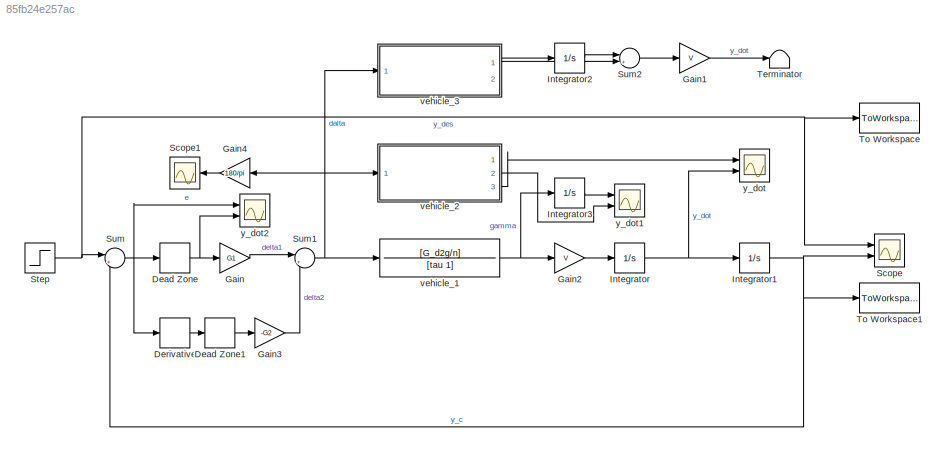
MODEL slx_85fb24e257ac
KIND model
CONFIG AbsTol = auto
CONFIG EnableMultiTasking = off
CONFIG FixedStep = auto
CONFIG MaxStep = auto
CONFIG MinStep = auto
CONFIG RelTol = 1e-3
CONFIG SampleTimeConstraint = Unconstrained
CONFIG Solver = VariableStepAuto
CONFIG SolverName = VariableStepAuto
CONFIG StartTime = 0.0
CONFIG StopTime = time
BLOCK [DeadZone] Dead Zone
  LowerValue = -sensitivity_e
  UpperValue = sensitivity_e
BLOCK [DeadZone] Dead Zone1
  LowerValue = -sensitivity_y_dot
  UpperValue = sensitivity_y_dot
BLOCK [Derivative] Derivative
BLOCK [Gain] Gain
  Gain = G1
  OutDataTypeStr = Inherit: Inherit via internal rule
  ParamDataTypeStr = Inherit: Inherit via internal rule
  SaturateOnIntegerOverflow = off
BLOCK [Gain] Gain1
  Gain = V
  OutDataTypeStr = Inherit: Inherit via internal rule
  ParamDataTypeStr = Inherit: Inherit via internal rule
  SaturateOnIntegerOverflow = off
BLOCK [Gain] Gain2
  Gain = V
  OutDataTypeStr = Inherit: Inherit via internal rule
  ParamDataTypeStr = Inherit: Inherit via internal rule
  SaturateOnIntegerOverflow = off
BLOCK [Gain] Gain3
  Gain = -G2
  OutDataTypeStr = Inherit: Inherit via internal rule
  ParamDataTypeStr = Inherit: Inherit via internal rule
  SaturateOnIntegerOverflow = off
BLOCK [Gain] Gain4
  Gain = 180/pi
  OutDataTypeStr = Inherit: Inherit via internal rule
  ParamDataTypeStr = Inherit: Inherit via internal rule
  SaturateOnIntegerOverflow = off
BLOCK [Integrator] Integrator
  Ports = [1, 1]
BLOCK [Integrator] Integrator1
  Ports = [1, 1]
BLOCK [Integrator] Integrator2
  Ports = [1, 1]
BLOCK [Integrator] Integrator3
  Ports = [1, 1]
BLOCK [Scope] Scope
  Floating = off
  NumInputPorts = 2
  Ports = [2]
  ScopeSpecificationString = Simulink.scopes.TimeScopeBlockCfg('CurrentConfiguration', extmgr.ConfigurationSet(extmgr.Configuration('Core','General UI',true),extmgr.Configuration('Core','Source UI',true),extmgr.Configuration('Sources','WiredSimulink',true),extmgr.Configuration('Visuals','Time Domain',true,'SerializedDisplays',{struct('MinYLimReal','-0.12987','MaxYLimReal','1.16886','YLabelReal','','MinYLimMag','0.00000','MaxY...<+1360ch>
BLOCK [Scope] Scope1
  Floating = off
  NumInputPorts = 1
  Ports = [1]
  ScopeSpecificationString = Simulink.scopes.TimeScopeBlockCfg('CurrentConfiguration', extmgr.ConfigurationSet(extmgr.Configuration('Core','General UI',true),extmgr.Configuration('Core','Source UI',true),extmgr.Configuration('Sources','WiredSimulink',true,'DataLoggingVariableName','ScopeData1'),extmgr.Configuration('Visuals','Time Domain',true,'SerializedDisplays',{struct('MinYLimReal','-72.06714','MaxYLimReal','167.1624','YL...<+1400ch>
BLOCK [Step] Step
  SampleTime = 0
BLOCK [Sum] Sum
  IconShape = round
  InputSameDT = off
  Inputs = |+-
  OutDataTypeStr = Inherit: Inherit via internal rule
  Ports = [2, 1]
  SaturateOnIntegerOverflow = off
BLOCK [Sum] Sum1
  IconShape = round
  InputSameDT = off
  Inputs = |++
  OutDataTypeStr = Inherit: Inherit via internal rule
  Ports = [2, 1]
  SaturateOnIntegerOverflow = off
BLOCK [Sum] Sum2
  IconShape = round
  InputSameDT = off
  Inputs = |++
  OutDataTypeStr = Inherit: Inherit via internal rule
  Ports = [2, 1]
  SaturateOnIntegerOverflow = off
BLOCK [Terminator] Terminator
BLOCK [ToWorkspace] To Workspace
  FixptAsFi = on
  MaxDataPoints = inf
  Ports = [1]
  SampleTime = -1
  Save2DSignal = 3-D array (concatenate along third dimension)
  SaveFormat = Timeseries
  VariableName = y_des
BLOCK [ToWorkspace] To Workspace1
  FixptAsFi = on
  MaxDataPoints = inf
  Ports = [1]
  SampleTime = -1
  Save2DSignal = 3-D array (concatenate along third dimension)
  SaveFormat = Timeseries
  VariableName = y_c
BLOCK [TransferFcn] vehicle_1
  Denominator = [tau 1]
  Numerator = [G_d2g/n]
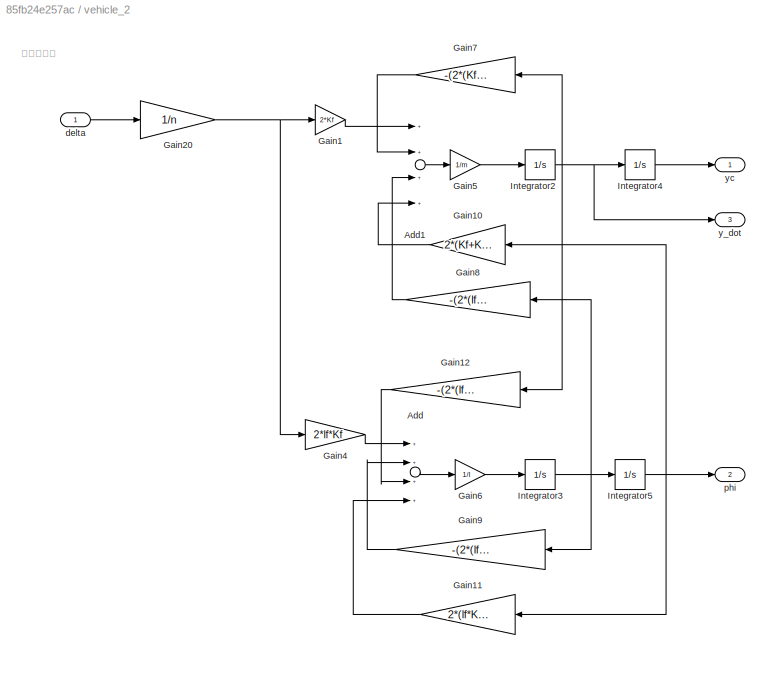
BLOCK [SubSystem] vehicle_2
  Ports = [1, 3]
  RequestExecContextInheritance = off
BLOCK [Sum] vehicle_2/Add
  InputSameDT = off
  Inputs = ++++
  OutDataTypeStr = Inherit: Inherit via internal rule
  Ports = [4, 1]
  SaturateOnIntegerOverflow = off
BLOCK [Sum] vehicle_2/Add1
  InputSameDT = off
  Inputs = ++++
  OutDataTypeStr = Inherit: Inherit via internal rule
  Ports = [4, 1]
  SaturateOnIntegerOverflow = off
BLOCK [Gain] vehicle_2/Gain1
  Gain = 2*Kf
  OutDataTypeStr = Inherit: Inherit via internal rule
  ParamDataTypeStr = Inherit: Inherit via internal rule
  SaturateOnIntegerOverflow = off
BLOCK [Gain] vehicle_2/Gain10
  Gain = 2*(Kf+Kr)
  OutDataTypeStr = Inherit: Inherit via internal rule
  ParamDataTypeStr = Inherit: Inherit via internal rule
  SaturateOnIntegerOverflow = off
BLOCK [Gain] vehicle_2/Gain11
  Gain = 2*(lf*Kf-lr*Kr)
  OutDataTypeStr = Inherit: Inherit via internal rule
  ParamDataTypeStr = Inherit: Inherit via internal rule
  SaturateOnIntegerOverflow = off
BLOCK [Gain] vehicle_2/Gain12
  Gain = -(2*(lf*Kf-lr*Kr)/V)
  OutDataTypeStr = Inherit: Inherit via internal rule
  ParamDataTypeStr = Inherit: Inherit via internal rule
  SaturateOnIntegerOverflow = off
BLOCK [Gain] vehicle_2/Gain20
  Gain = 1/n
  OutDataTypeStr = Inherit: Inherit via internal rule
  ParamDataTypeStr = Inherit: Inherit via internal rule
  SaturateOnIntegerOverflow = off
BLOCK [Gain] vehicle_2/Gain4
  Gain = 2*lf*Kf
  OutDataTypeStr = Inherit: Inherit via internal rule
  ParamDataTypeStr = Inherit: Inherit via internal rule
  SaturateOnIntegerOverflow = off
BLOCK [Gain] vehicle_2/Gain5
  Gain = 1/m
  OutDataTypeStr = Inherit: Inherit via internal rule
  ParamDataTypeStr = Inherit: Inherit via internal rule
  SaturateOnIntegerOverflow = off
BLOCK [Gain] vehicle_2/Gain6
  Gain = 1/I
  OutDataTypeStr = Inherit: Inherit via internal rule
  ParamDataTypeStr = Inherit: Inherit via internal rule
  SaturateOnIntegerOverflow = off
BLOCK [Gain] vehicle_2/Gain7
  Gain = -(2*(Kf+Kr)/V)
  OutDataTypeStr = Inherit: Inherit via internal rule
  ParamDataTypeStr = Inherit: Inherit via internal rule
  SaturateOnIntegerOverflow = off
BLOCK [Gain] vehicle_2/Gain8
  Gain = -(2*(lf*Kf-lr*Kr)/V)
  OutDataTypeStr = Inherit: Inherit via internal rule
  ParamDataTypeStr = Inherit: Inherit via internal rule
  SaturateOnIntegerOverflow = off
BLOCK [Gain] vehicle_2/Gain9
  Gain = -(2*(lf*lf*Kf+lr*lr*Kr)/V)
  OutDataTypeStr = Inherit: Inherit via internal rule
  ParamDataTypeStr = Inherit: Inherit via internal rule
  SaturateOnIntegerOverflow = off
BLOCK [Integrator] vehicle_2/Integrator2
  Ports = [1, 1]
BLOCK [Integrator] vehicle_2/Integrator3
  Ports = [1, 1]
BLOCK [Integrator] vehicle_2/Integrator4
  Ports = [1, 1]
BLOCK [Integrator] vehicle_2/Integrator5
  Ports = [1, 1]
BLOCK [Inport] vehicle_2/delta
  IconDisplay = Port number
BLOCK [Outport] vehicle_2/phi
  IconDisplay = Port number
  Port = 2
BLOCK [Outport] vehicle_2/y_dot
  IconDisplay = Port number
  Port = 3
BLOCK [Outport] vehicle_2/yc
  IconDisplay = Port number
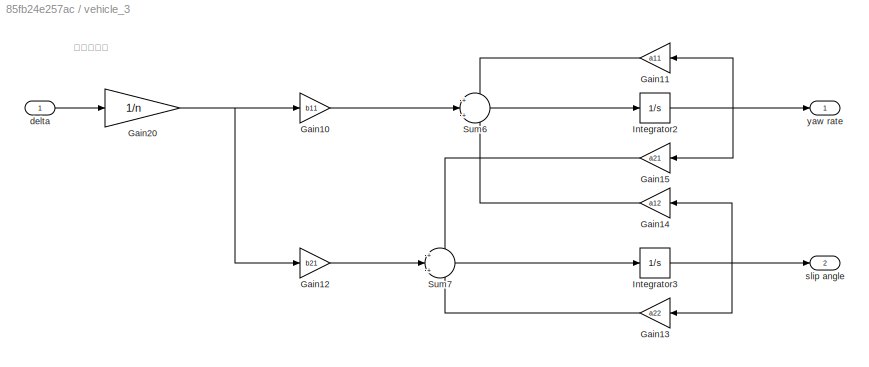
BLOCK [SubSystem] vehicle_3
  Commented = on
  Ports = [1, 2]
  RequestExecContextInheritance = off
BLOCK [Gain] vehicle_3/Gain10
  Gain = b11
  OutDataTypeStr = Inherit: Inherit via internal rule
  ParamDataTypeStr = Inherit: Inherit via internal rule
  SaturateOnIntegerOverflow = off
BLOCK [Gain] vehicle_3/Gain11
  Gain = a11
  OutDataTypeStr = Inherit: Inherit via internal rule
  ParamDataTypeStr = Inherit: Inherit via internal rule
  SaturateOnIntegerOverflow = off
BLOCK [Gain] vehicle_3/Gain12
  Gain = b21
  OutDataTypeStr = Inherit: Inherit via internal rule
  ParamDataTypeStr = Inherit: Inherit via internal rule
  SaturateOnIntegerOverflow = off
BLOCK [Gain] vehicle_3/Gain13
  Gain = a22
  OutDataTypeStr = Inherit: Inherit via internal rule
  ParamDataTypeStr = Inherit: Inherit via internal rule
  SaturateOnIntegerOverflow = off
BLOCK [Gain] vehicle_3/Gain14
  Gain = a12
  OutDataTypeStr = Inherit: Inherit via internal rule
  ParamDataTypeStr = Inherit: Inherit via internal rule
  SaturateOnIntegerOverflow = off
BLOCK [Gain] vehicle_3/Gain15
  Gain = a21
  OutDataTypeStr = Inherit: Inherit via internal rule
  ParamDataTypeStr = Inherit: Inherit via internal rule
  SaturateOnIntegerOverflow = off
BLOCK [Gain] vehicle_3/Gain20
  Gain = 1/n
  OutDataTypeStr = Inherit: Inherit via internal rule
  ParamDataTypeStr = Inherit: Inherit via internal rule
  SaturateOnIntegerOverflow = off
BLOCK [Integrator] vehicle_3/Integrator2
  Ports = [1, 1]
BLOCK [Integrator] vehicle_3/Integrator3
  Ports = [1, 1]
BLOCK [Sum] vehicle_3/Sum6
  IconShape = round
  InputSameDT = off
  Inputs = +|+|+
  OutDataTypeStr = Inherit: Inherit via internal rule
  Ports = [3, 1]
  SaturateOnIntegerOverflow = off
BLOCK [Sum] vehicle_3/Sum7
  IconShape = round
  InputSameDT = off
  Inputs = +|+|+
  OutDataTypeStr = Inherit: Inherit via internal rule
  Ports = [3, 1]
  SaturateOnIntegerOverflow = off
BLOCK [Inport] vehicle_3/delta
  IconDisplay = Port number
BLOCK [Outport] vehicle_3/slip angle
  IconDisplay = Port number
  Port = 2
BLOCK [Outport] vehicle_3/yaw rate
  IconDisplay = Port number
BLOCK [Scope] y_dot
  Floating = off
  NumInputPorts = 2
  Ports = [2]
  ScopeSpecificationString = Simulink.scopes.TimeScopeBlockCfg('CurrentConfiguration', extmgr.ConfigurationSet(extmgr.Configuration('Core','General UI',true),extmgr.Configuration('Core','Source UI',true),extmgr.Configuration('Sources','WiredSimulink',true,'DataLoggingVariableName','ScopeData1'),extmgr.Configuration('Visuals','Time Domain',true,'SerializedDisplays',{struct('MinYLimReal','-0.53777','MaxYLimReal','1.86061','YLab...<+1687ch>
BLOCK [Scope] y_dot1
  Floating = off
  NumInputPorts = 2
  Ports = [2]
  ScopeSpecificationString = Simulink.scopes.TimeScopeBlockCfg('CurrentConfiguration', extmgr.ConfigurationSet(extmgr.Configuration('Core','General UI',true),extmgr.Configuration('Core','Source UI',true),extmgr.Configuration('Sources','WiredSimulink',true,'DataLoggingVariableName','ScopeData2'),extmgr.Configuration('Visuals','Time Domain',true,'SerializedDisplays',{struct('MinYLimReal','-0.02905','MaxYLimReal','0.17278','YLab...<+1693ch>
BLOCK [Scope] y_dot2
  Floating = off
  NumInputPorts = 2
  Ports = [2]
  ScopeSpecificationString = Simulink.scopes.TimeScopeBlockCfg('CurrentConfiguration', extmgr.ConfigurationSet(extmgr.Configuration('Core','General UI',true),extmgr.Configuration('Core','Source UI',true),extmgr.Configuration('Sources','WiredSimulink',true,'DataLoggingVariableName','ScopeData1'),extmgr.Configuration('Visuals','Time Domain',true,'SerializedDisplays',{struct('MinYLimReal','-0.17545','MaxYLimReal','1.13061','YLab...<+1681ch>
ANNOTATION vehicle_2: 絶対座標系
ANNOTATION vehicle_3: 車両座標系
LINE Dead Zone1:1 -> Gain3:1
NET Dead Zone:1 -> Gain:1, y_dot2:2
LINE Derivative:1 -> Dead Zone1:1
LINE Gain1:1 -> Terminator:1
LINE Gain2:1 -> Integrator:1
LINE Gain3:1 -> Sum1:2
LINE Gain4:1 -> Scope1:1
LINE Gain:1 -> Sum1:1
NET Integrator1:1 -> Scope:2, Sum:2, To Workspace1:1
LINE Integrator2:1 -> Sum2:1
LINE Integrator3:1 -> y_dot1:1
NET Integrator:1 -> Integrator1:1, y_dot:2
NET Step:1 -> Scope:1, Sum:1, To Workspace:1
NET Sum1:1 -> Gain4:1, vehicle_1:1, vehicle_2:1, vehicle_3:1
LINE Sum2:1 -> Gain1:1
NET Sum:1 -> Dead Zone:1, Derivative:1, y_dot2:1
NET vehicle_1:1 -> Gain2:1, Integrator3:1
LINE vehicle_2/Add1:1 -> vehicle_2/Gain5:1
LINE vehicle_2/Add:1 -> vehicle_2/Gain6:1
LINE vehicle_2/Gain10:1 -> vehicle_2/Add1:4
LINE vehicle_2/Gain11:1 -> vehicle_2/Add:4
LINE vehicle_2/Gain12:1 -> vehicle_2/Add:3
LINE vehicle_2/Gain1:1 -> vehicle_2/Add1:1
NET vehicle_2/Gain20:1 -> vehicle_2/Gain1:1, vehicle_2/Gain4:1
LINE vehicle_2/Gain4:1 -> vehicle_2/Add:1
LINE vehicle_2/Gain5:1 -> vehicle_2/Integrator2:1
LINE vehicle_2/Gain6:1 -> vehicle_2/Integrator3:1
LINE vehicle_2/Gain7:1 -> vehicle_2/Add1:2
LINE vehicle_2/Gain8:1 -> vehicle_2/Add1:3
LINE vehicle_2/Gain9:1 -> vehicle_2/Add:2
NET vehicle_2/Integrator2:1 -> vehicle_2/Gain12:1, vehicle_2/Gain7:1, vehicle_2/Integrator4:1, vehicle_2/y_dot:1
NET vehicle_2/Integrator3:1 -> vehicle_2/Gain8:1, vehicle_2/Gain9:1, vehicle_2/Integrator5:1
LINE vehicle_2/Integrator4:1 -> vehicle_2/yc:1
NET vehicle_2/Integrator5:1 -> vehicle_2/Gain10:1, vehicle_2/Gain11:1, vehicle_2/phi:1
LINE vehicle_2/delta:1 -> vehicle_2/Gain20:1
LINE vehicle_2:2 -> y_dot1:2
LINE vehicle_2:3 -> y_dot:1
LINE vehicle_3/Gain10:1 -> vehicle_3/Sum6:2
LINE vehicle_3/Gain11:1 -> vehicle_3/Sum6:1
LINE vehicle_3/Gain12:1 -> vehicle_3/Sum7:2
LINE vehicle_3/Gain13:1 -> vehicle_3/Sum7:3
LINE vehicle_3/Gain14:1 -> vehicle_3/Sum6:3
LINE vehicle_3/Gain15:1 -> vehicle_3/Sum7:1
NET vehicle_3/Gain20:1 -> vehicle_3/Gain10:1, vehicle_3/Gain12:1
NET vehicle_3/Integrator2:1 -> vehicle_3/Gain11:1, vehicle_3/Gain15:1, vehicle_3/yaw rate:1
NET vehicle_3/Integrator3:1 -> vehicle_3/Gain13:1, vehicle_3/Gain14:1, vehicle_3/slip angle:1
LINE vehicle_3/Sum6:1 -> vehicle_3/Integrator2:1
LINE vehicle_3/Sum7:1 -> vehicle_3/Integrator3:1
LINE vehicle_3/delta:1 -> vehicle_3/Gain20:1
LINE vehicle_3:1 -> Integrator2:1
LINE vehicle_3:2 -> Sum2:2
note: NET lines group one-source signal fan-out (src -> all destinations, sorted); 1:1 wires keep LINE
